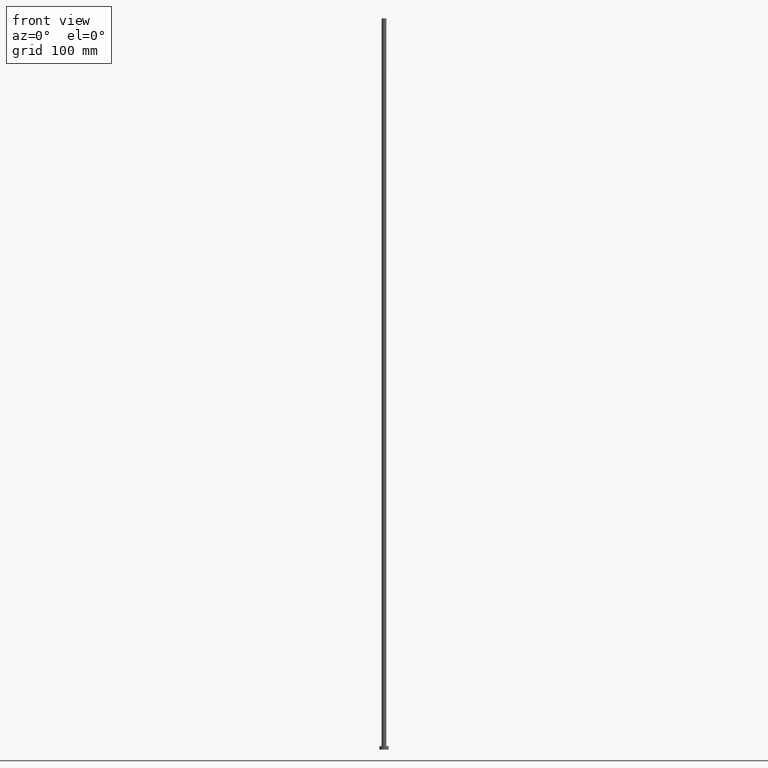
[diagram: clean part render]
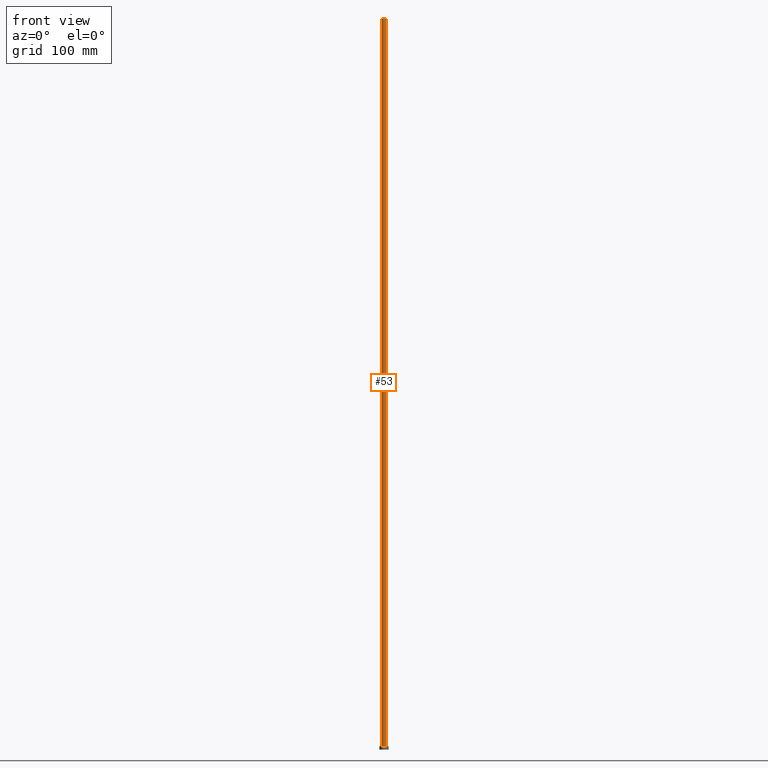
[diagram: same view with one face highlighted and labeled with its STEP entity id]
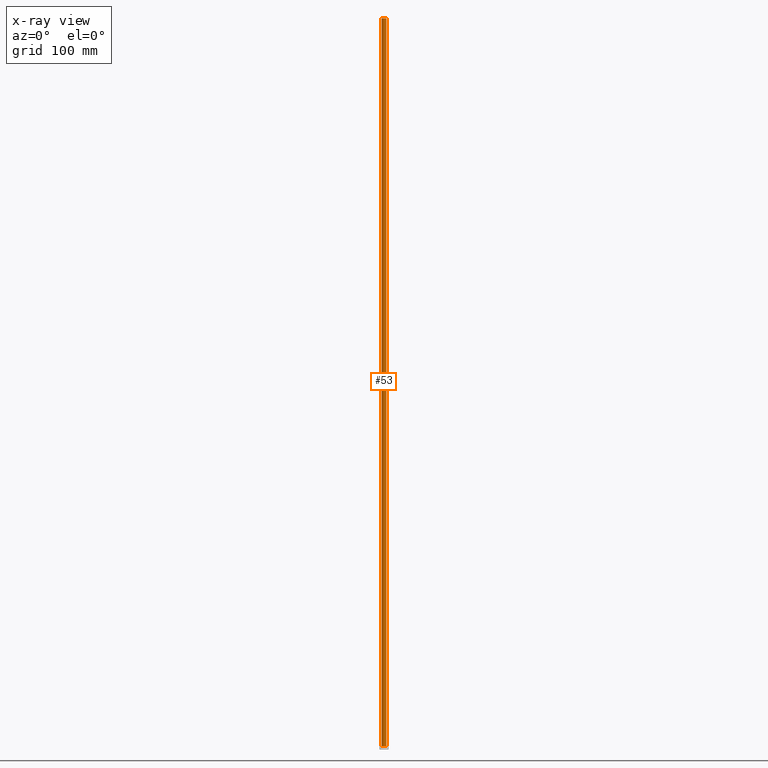
[diagram: x-ray of the same camera — body ghosted, the highlighted face saturated]
A machine part, front view. The second image highlights one B-rep face of the part: STEP entity #53.
The next image is the same camera in x-ray: the body ghosted, the highlighted face saturated — about 0% of this face is hidden behind the body in this view.
In plain terms, the highlighted cylindrical surface (edge-blend (fillet) strip) has radius 2 mm, axis along (-0, -0, -1).
Its self-contained STEP definition (entity closure, byte-faithful):
#1 = ORIENTED_EDGE ( 'NONE', *, *, #71, .F. ) ;
#5 = DIRECTION ( 'NONE',  ( -0.000000000000000000, -0.000000000000000000, -1.000000000000000000 ) ) ;
#10 = DIRECTION ( 'NONE',  ( -1.000000000000000000, 0.000000000000000000, 0.000000000000000000 ) ) ;
#22 = CYLINDRICAL_SURFACE ( 'NONE', #64, 2.000000000000000000 ) ;
#44 = FACE_OUTER_BOUND ( 'NONE', #137, .T. ) ;
#46 = CARTESIAN_POINT ( 'NONE',  ( 2.000000000000000000, 2.449293598294706414E-16, 3.000000000000000000 ) ) ;
#51 = ORIENTED_EDGE ( 'NONE', *, *, #108, .T. ) ;
#53 = ADVANCED_FACE ( 'NONE', ( #44 ), #22, .T. ) ;
#54 = CARTESIAN_POINT ( 'NONE',  ( 0.000000000000000000, 0.000000000000000000, 630.0000000000000000 ) ) ;
#57 = VECTOR ( 'NONE', #217, 1000.000000000000000 ) ;
#59 = CARTESIAN_POINT ( 'NONE',  ( -2.000000000000000000, 0.000000000000000000, 3.000000000000000000 ) ) ;
#64 = AXIS2_PLACEMENT_3D ( 'NONE', #154, #5, #10 ) ;
#66 = AXIS2_PLACEMENT_3D ( 'NONE', #54, #135, #198 ) ;
#71 = EDGE_CURVE ( 'NONE', #168, #237, #205, .T. ) ;
#78 = CARTESIAN_POINT ( 'NONE',  ( -2.000000000000000000, 0.000000000000000000, 630.0000000000000000 ) ) ;
#80 = DIRECTION ( 'NONE',  ( 0.000000000000000000, 0.000000000000000000, 1.000000000000000000 ) ) ;
#81 = ORIENTED_EDGE ( 'NONE', *, *, #169, .F. ) ;
#94 = DIRECTION ( 'NONE',  ( 1.000000000000000000, 0.000000000000000000, 0.000000000000000000 ) ) ;
#108 = EDGE_CURVE ( 'NONE', #168, #187, #121, .T. ) ;
#109 = CARTESIAN_POINT ( 'NONE',  ( 2.000000000000000000, 2.449293598294706414E-16, 630.0000000000000000 ) ) ;
#116 = EDGE_CURVE ( 'NONE', #187, #213, #142, .T. ) ;
#121 = LINE ( 'NONE', #78, #201 ) ;
#125 = CARTESIAN_POINT ( 'NONE',  ( 2.000000000000000000, 2.449293598294706414E-16, 630.0000000000000000 ) ) ;
#135 = DIRECTION ( 'NONE',  ( 0.000000000000000000, 0.000000000000000000, 1.000000000000000000 ) ) ;
#137 = EDGE_LOOP ( 'NONE', ( #81, #1, #51, #150 ) ) ;
#142 = CIRCLE ( 'NONE', #155, 2.000000000000000000 ) ;
#144 = CARTESIAN_POINT ( 'NONE',  ( -2.000000000000000000, 0.000000000000000000, 630.0000000000000000 ) ) ;
#150 = ORIENTED_EDGE ( 'NONE', *, *, #116, .T. ) ;
#154 = CARTESIAN_POINT ( 'NONE',  ( 0.000000000000000000, 0.000000000000000000, 630.0000000000000000 ) ) ;
#155 = AXIS2_PLACEMENT_3D ( 'NONE', #250, #80, #94 ) ;
#168 = VERTEX_POINT ( 'NONE', #144 ) ;
#169 = EDGE_CURVE ( 'NONE', #237, #213, #229, .T. ) ;
#179 = DIRECTION ( 'NONE',  ( -0.000000000000000000, -0.000000000000000000, -1.000000000000000000 ) ) ;
#187 = VERTEX_POINT ( 'NONE', #59 ) ;
#198 = DIRECTION ( 'NONE',  ( 1.000000000000000000, 0.000000000000000000, 0.000000000000000000 ) ) ;
#201 = VECTOR ( 'NONE', #179, 1000.000000000000000 ) ;
#205 = CIRCLE ( 'NONE', #66, 2.000000000000000000 ) ;
#213 = VERTEX_POINT ( 'NONE', #46 ) ;
#217 = DIRECTION ( 'NONE',  ( -0.000000000000000000, -0.000000000000000000, -1.000000000000000000 ) ) ;
#229 = LINE ( 'NONE', #125, #57 ) ;
#237 = VERTEX_POINT ( 'NONE', #109 ) ;
#250 = CARTESIAN_POINT ( 'NONE',  ( 0.000000000000000000, 0.000000000000000000, 3.000000000000000000 ) ) ;